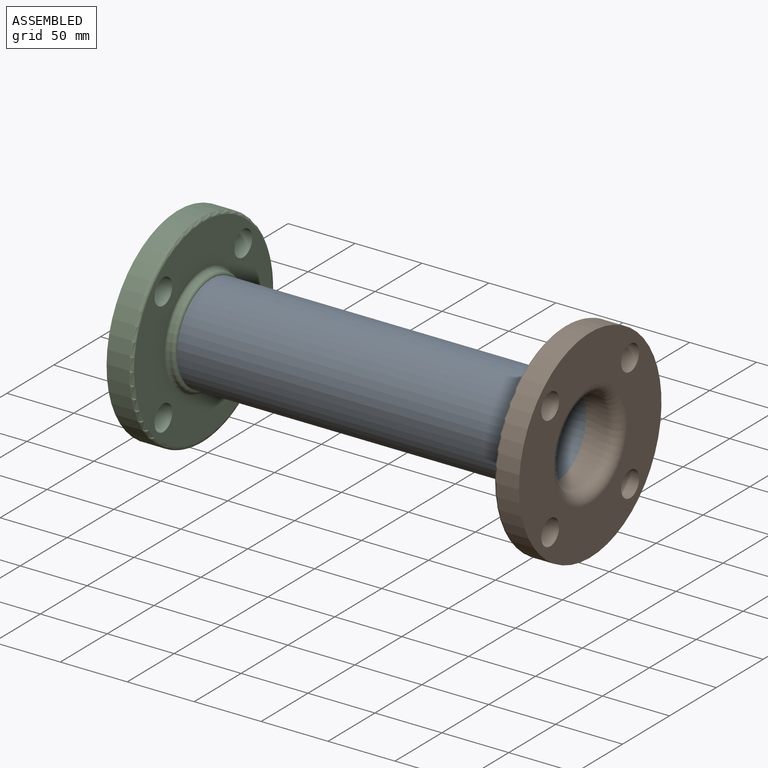
[diagram: assembled view]
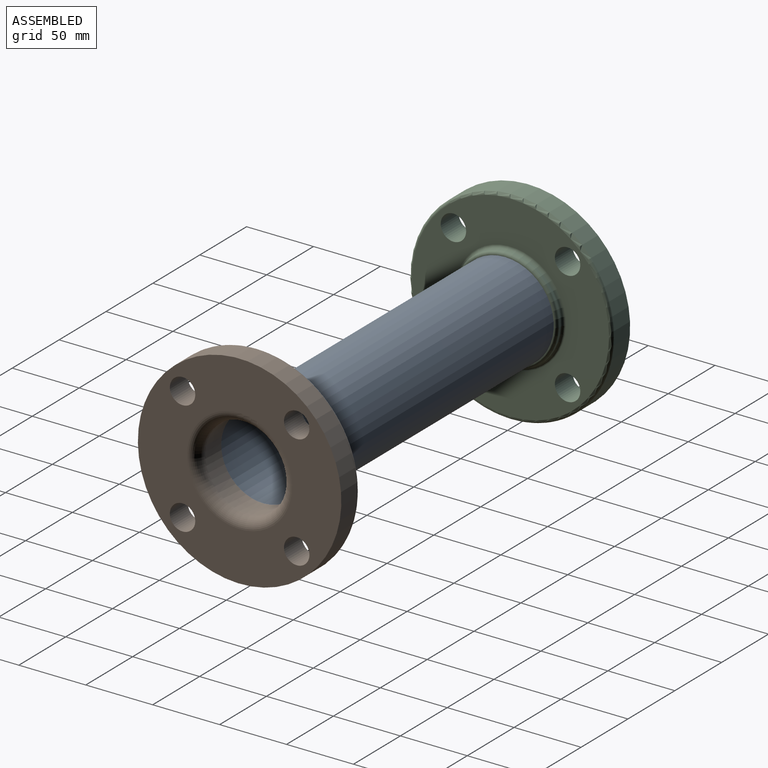
[diagram: assembled view, second angle]
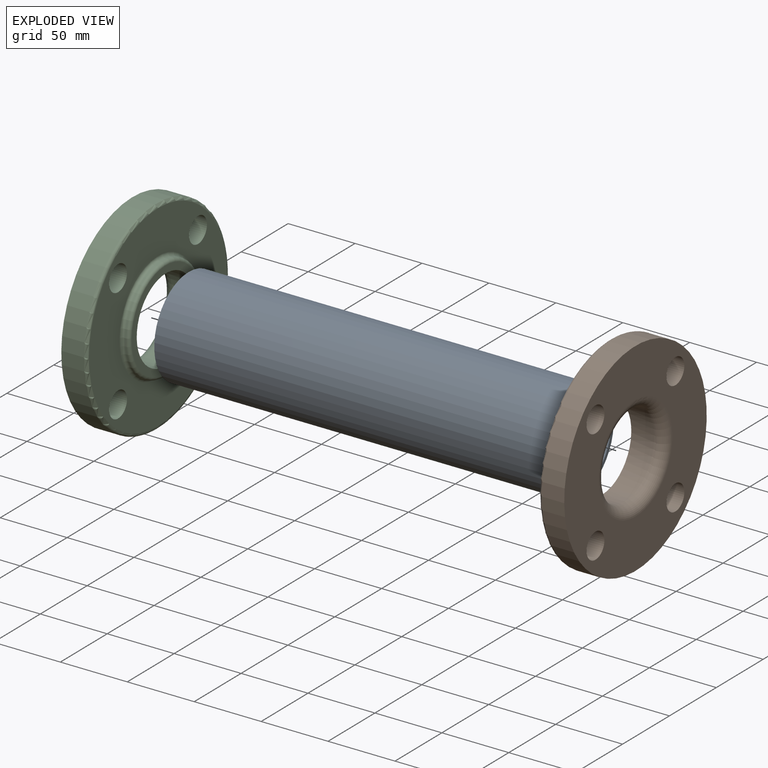
[diagram: exploded view]
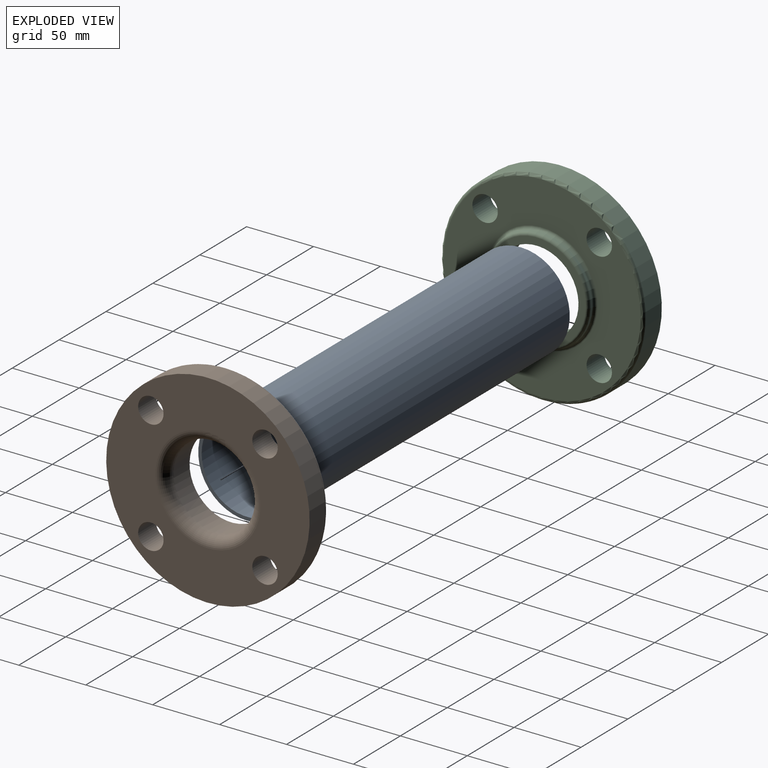
[diagram: exploded view, second angle]
ASSEMBLY  parts=3 mates=2
PART A: 4 faces, bbox 73x292.1x73 mm
  f0: plane 73.03x73.03mm, normal (0,-1,0), area 562.4mm2, adj f2,f3
  f1: plane 73.03x73.03mm, normal (0,1,0), area 562.4mm2, adj f2,f3
  f2: cylinder r=36.51mm len=292.1mm, axis (0,1,0), area 67012.1mm2, adj f0,f1
  f3: cylinder r=33.97mm len=292.1mm, axis (0,1,0), area 62350.4mm2, adj f0,f1
PART B: 14 faces, bbox 25x164.5x164.5 mm
  f0: cylinder r=31.25mm len=62.5mm, axis (1,0,0), area 3337.9mm2, adj f2,f13
  f1: plane 152x152mm, normal (-1,0,0), area 12171.9mm2, adj f8,f9,f10,f11,f12,f13
  f2: plane 73.31x73.31mm, normal (1,0,0), area 1153.4mm2, adj f0,f3
  f3: torus R=36.66mm, axis (-1,0,0), area 882.4mm2, adj f2,f4
  f4: cylinder r=39mm len=78mm, axis (-1,0,0), area 297.2mm2, adj f3,f5
  f5: torus R=41.34mm, axis (-1,0,0), area 921.8mm2, adj f4,f6
  f6: plane 147.31x147.31mm, normal (1,0,0), area 10539.9mm2, adj f5,f7,f9,f10,f11,f12
  f7: torus R=73.66mm, axis (-1,0,0), area 1738.3mm2, adj f6,f8
  f8: cylinder r=76mm len=152mm, axis (-1,0,0), area 8001.5mm2, adj f1,f7
  f9: cylinder r=9.5mm len=19.1mm, axis (1,0,0), area 1140.1mm2, adj f1,f6
  f10: cylinder r=9.5mm len=19.1mm, axis (1,0,0), area 1140.1mm2, adj f1,f6
  f11: cylinder r=9.5mm len=19.1mm, axis (1,0,0), area 1140.1mm2, adj f1,f6
  f12: cylinder r=9.5mm len=19.1mm, axis (1,0,0), area 1140.1mm2, adj f1,f6
  f13: torus R=39.25mm, axis (-1,0,0), area 2696.9mm2, adj f0,f1
PART C: same geometry as B
PLACE A rot(axis=(0.58,0.58,-0.58),120deg) t=(50.95,0,-4081.83)mm fixed
PLACE B rot(axis=(0,-0.92,0.38),180deg) t=(185.8,0,0)mm
PLACE C rot(axis=(1,0,0),45deg) t=(-122.3,0,0)mm
MATE fastened C.f0 <-> A.f2  axis (1,0,0) through (-114.3,0,0)mm
MATE fastened B.f0 <-> A.f2  axis (-1,0,0) through (177.8,0,0)mm
